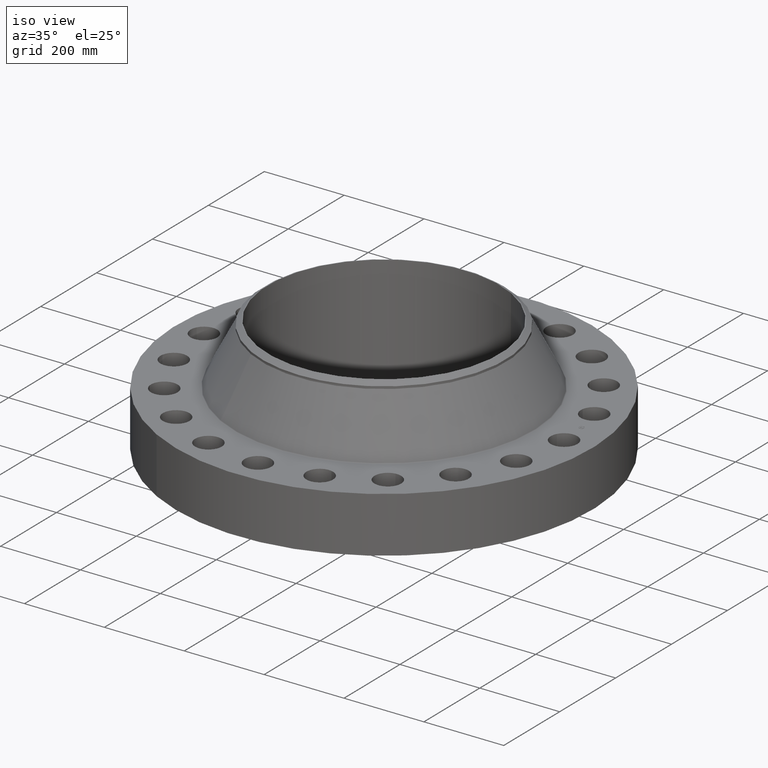
[diagram: clean part render]
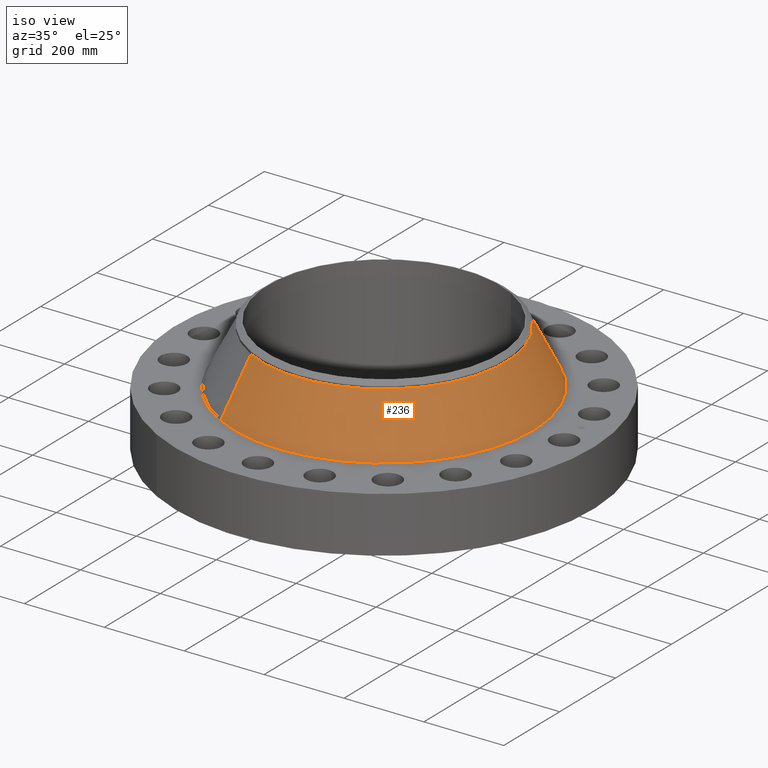
[diagram: same view with one face highlighted and labeled with its STEP entity id]
A machine part, iso view. The second image highlights one B-rep face of the part: STEP entity #236.
In plain terms, the highlighted conical surface has half-angle 27.018 deg.
Its self-contained STEP definition (entity closure, byte-faithful):
#172=AXIS2_PLACEMENT_3D('Circle Axis2P3D',#170,#171,$) ;
#209=AXIS2_PLACEMENT_3D('Cone Axis2P3D',#206,#207,#208) ;
#220=AXIS2_PLACEMENT_3D('Circle Axis2P3D',#218,#219,$) ;
#167=CARTESIAN_POINT('Vertex',(7.05551697202,12.9150371876,5.56548732335)) ;
#170=CARTESIAN_POINT('Axis2P3D Location',(0.,0.,5.56548732335)) ;
#174=CARTESIAN_POINT('Vertex',(-7.05551697202,-12.9150371876,5.56548732335)) ;
#206=CARTESIAN_POINT('Axis2P3D Location',(0.,0.,10.8929612082)) ;
#211=CARTESIAN_POINT('Line Origine',(6.40431171765,11.7230139652,8.22922426579)) ;
#215=CARTESIAN_POINT('Vertex',(5.75310646327,10.5309907427,10.8929612082)) ;
#218=CARTESIAN_POINT('Axis2P3D Location',(0.,0.,10.8929612082)) ;
#222=CARTESIAN_POINT('Vertex',(-5.75310646327,-10.5309907427,10.8929612082)) ;
#225=CARTESIAN_POINT('Line Origine',(-6.40431171765,-11.7230139652,8.22922426579)) ;
#171=DIRECTION('Axis2P3D Direction',(0.,0.,-0.0393700787402)) ;
#207=DIRECTION('Axis2P3D Direction',(0.,0.,-0.0393700787402)) ;
#208=DIRECTION('Axis2P3D XDirection',(-0.0188750212049,-0.0345504945626,0.)) ;
#212=DIRECTION('Vector Direction',(0.0085743994013,0.0156953328251,-0.035073341763)) ;
#219=DIRECTION('Axis2P3D Direction',(0.,0.,-0.0393700787402)) ;
#226=DIRECTION('Vector Direction',(-0.0085743994013,-0.0156953328251,-0.035073341763)) ;
#213=VECTOR('Line Direction',#212,0.0393700787402) ;
#227=VECTOR('Line Direction',#226,0.0393700787402) ;
#231=ORIENTED_EDGE('',*,*,#176,.F.) ;
#232=ORIENTED_EDGE('',*,*,#217,.T.) ;
#233=ORIENTED_EDGE('',*,*,#224,.T.) ;
#234=ORIENTED_EDGE('',*,*,#229,.F.) ;
#236=ADVANCED_FACE('PartBody',(#235),#210,.T.) ;
#173=CIRCLE('generated circle',#172,14.7166064465) ;
#221=CIRCLE('generated circle',#220,12.) ;
#210=CONICAL_SURFACE('Cone',#209,12.,0.471555201662) ;
#176=EDGE_CURVE('',#168,#175,#173,.T.) ;
#217=EDGE_CURVE('',#168,#216,#214,.F.) ;
#224=EDGE_CURVE('',#216,#223,#221,.T.) ;
#229=EDGE_CURVE('',#175,#223,#228,.F.) ;
#230=EDGE_LOOP('',(#231,#232,#233,#234)) ;
#235=FACE_OUTER_BOUND('',#230,.T.) ;
#214=LINE('Line',#211,#213) ;
#228=LINE('Line',#225,#227) ;
#168=VERTEX_POINT('',#167) ;
#175=VERTEX_POINT('',#174) ;
#216=VERTEX_POINT('',#215) ;
#223=VERTEX_POINT('',#222) ;